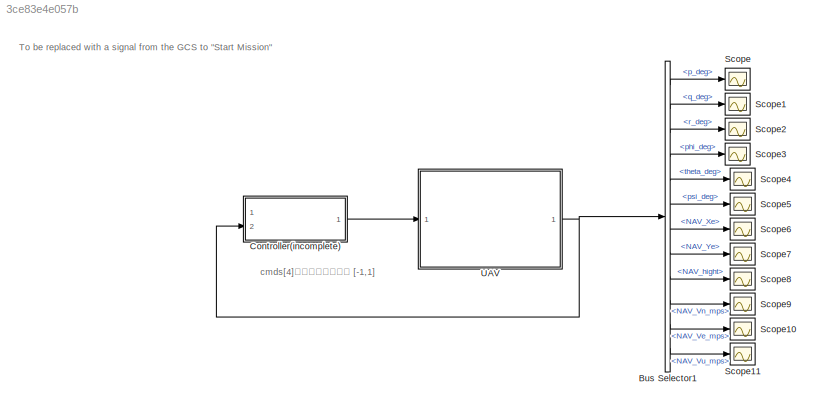
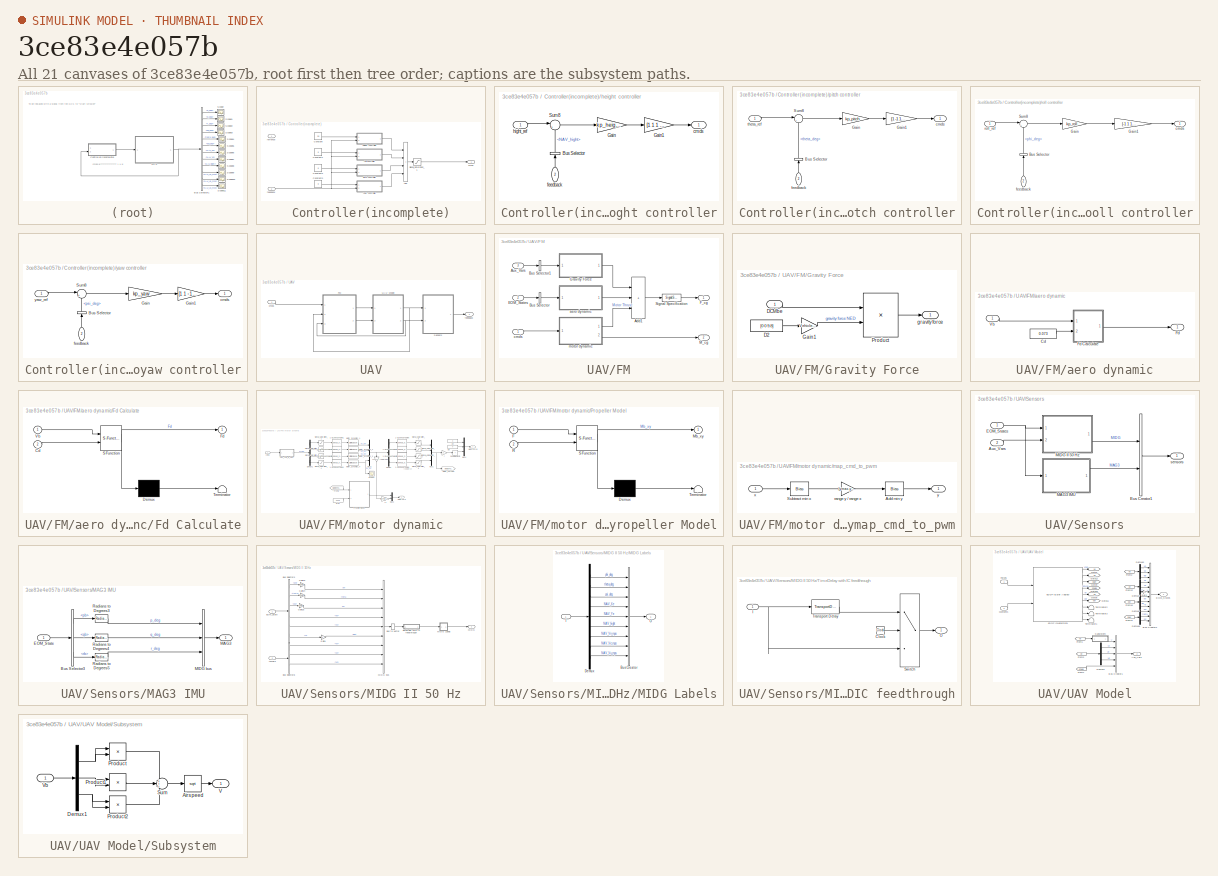
[diagram: thumbnail index - all 21 canvases of the model, root first then tree order]
MODEL slx_3ce83e4e057b
KIND model
CONFIG AbsTol = auto
CONFIG EnableMultiTasking = off
CONFIG FixedStep = auto
CONFIG MaxStep = auto
CONFIG MinStep = auto
CONFIG RelTol = 1e-3
CONFIG SampleTimeConstraint = Unconstrained
CONFIG SolverName = VariableStepAuto
CONFIG StartTime = 0.0
CONFIG StopTime = 5
BLOCK [BusSelector] Bus Selector1
  OutputSignals = MAG3.p_deg,MAG3.q_deg,MAG3.r_deg,MIDG.phi_deg,MIDG.theta_deg,MIDG.psi_deg,MIDG.NAV_Xe,MIDG.NAV_Ye,MIDG.NAV_hight,MIDG.NAV_Vn_mps,MIDG.NAV_Ve_mps,MIDG.NAV_Vu_mps
  Ports = [1, 12]
BLOCK [SubSystem] Controller(incomplete)
  Ports = [2, 1]
  RequestExecContextInheritance = off
BLOCK [Sum] Controller(incomplete)/Add
  IconShape = rectangular
  Inputs = ++++
  Ports = [4, 1]
BLOCK [Constant] Controller(incomplete)/Constant
  Value = 20
BLOCK [Constant] Controller(incomplete)/Constant1
  Value = 0
BLOCK [Constant] Controller(incomplete)/Constant2
  Value = 0
BLOCK [Constant] Controller(incomplete)/Constant3
  Value = 0
BLOCK [Saturate] Controller(incomplete)/Signal_Saturation_1
  LowerLimit = [-1 -1 -1 -1]
  UpperLimit = [1 1 1 1]
BLOCK [Outport] Controller(incomplete)/cmds
BLOCK [Inport] Controller(incomplete)/feedback
  Port = 2
BLOCK [SubSystem] Controller(incomplete)/height controller
  Ports = [2, 1]
  RequestExecContextInheritance = off
BLOCK [BusSelector] Controller(incomplete)/height controller/Bus Selector
  NameLocation = right
  OutputSignals = MIDG.NAV_hight
  Ports = [1, 1]
BLOCK [Gain] Controller(incomplete)/height controller/Gain
  Gain = kp_height
BLOCK [Gain] Controller(incomplete)/height controller/Gain1
  Gain = [1 1 1 1]
BLOCK [Sum] Controller(incomplete)/height controller/Sum8
  Inputs = |+-
  Ports = [2, 1]
BLOCK [Outport] Controller(incomplete)/height controller/cmds
  VectorParamsAs1DForOutWhenUnconnected = off
BLOCK [Inport] Controller(incomplete)/height controller/feedback
  NameLocation = right
  Port = 2
BLOCK [Inport] Controller(incomplete)/height controller/hight_ref
BLOCK [SubSystem] Controller(incomplete)/pitch controller
  Ports = [2, 1]
  RequestExecContextInheritance = off
BLOCK [BusSelector] Controller(incomplete)/pitch controller/Bus Selector
  NameLocation = right
  OutputSignals = MIDG.theta_deg
  Ports = [1, 1]
BLOCK [Gain] Controller(incomplete)/pitch controller/Gain
  Gain = kp_pitch
BLOCK [Gain] Controller(incomplete)/pitch controller/Gain1
  Gain = [1 -1 1 -1]
BLOCK [Sum] Controller(incomplete)/pitch controller/Sum8
  Inputs = |+-
  Ports = [2, 1]
BLOCK [Outport] Controller(incomplete)/pitch controller/cmds
  VectorParamsAs1DForOutWhenUnconnected = off
BLOCK [Inport] Controller(incomplete)/pitch controller/feedback
  NameLocation = right
  Port = 2
BLOCK [Inport] Controller(incomplete)/pitch controller/theta_ref
BLOCK [Inport] Controller(incomplete)/refrence
BLOCK [SubSystem] Controller(incomplete)/roll controller
  Ports = [2, 1]
  RequestExecContextInheritance = off
BLOCK [BusSelector] Controller(incomplete)/roll controller/Bus Selector
  NameLocation = right
  OutputSignals = MIDG.phi_deg
  Ports = [1, 1]
BLOCK [Gain] Controller(incomplete)/roll controller/Gain
  Gain = kp_roll
BLOCK [Gain] Controller(incomplete)/roll controller/Gain1
  Gain = [-1 1 1 -1]
BLOCK [Sum] Controller(incomplete)/roll controller/Sum8
  Inputs = |+-
  Ports = [2, 1]
BLOCK [Outport] Controller(incomplete)/roll controller/cmds
  VectorParamsAs1DForOutWhenUnconnected = off
BLOCK [Inport] Controller(incomplete)/roll controller/feedback
  NameLocation = right
  Port = 2
BLOCK [Inport] Controller(incomplete)/roll controller/roll_ref
BLOCK [SubSystem] Controller(incomplete)/yaw controller
  Ports = [2, 1]
  RequestExecContextInheritance = off
BLOCK [BusSelector] Controller(incomplete)/yaw controller/Bus Selector
  NameLocation = right
  OutputSignals = MIDG.psi_deg
  Ports = [1, 1]
BLOCK [Gain] Controller(incomplete)/yaw controller/Gain
  Gain = kp_yaw
BLOCK [Gain] Controller(incomplete)/yaw controller/Gain1
  Gain = [1 1 -1 -1]
BLOCK [Sum] Controller(incomplete)/yaw controller/Sum8
  Inputs = |+-
  Ports = [2, 1]
BLOCK [Outport] Controller(incomplete)/yaw controller/cmds
  VectorParamsAs1DForOutWhenUnconnected = off
BLOCK [Inport] Controller(incomplete)/yaw controller/feedback
  NameLocation = right
  Port = 2
BLOCK [Inport] Controller(incomplete)/yaw controller/yaw_ref
BLOCK [Scope] Scope
  Floating = off
  NumInputPorts = 1
  Ports = [1]
  ScopeSpecificationString = Simulink.scopes.TimeScopeBlockCfg('CurrentConfiguration', extmgr.ConfigurationSet(extmgr.Configuration('Core','General UI',true),extmgr.Configuration('Core','Source UI',true),extmgr.Configuration('Sources','WiredSimulink',true),extmgr.Configuration('Visuals','Time Domain',true),extmgr.Configuration('Tools','Plot Navigation',true),extmgr.Configuration('Tools','Measurements',true)),'Version','2020b'...<+1ch>
BLOCK [Scope] Scope1
  Floating = off
  NumInputPorts = 1
  Ports = [1]
  ScopeSpecificationString = Simulink.scopes.TimeScopeBlockCfg('CurrentConfiguration', extmgr.ConfigurationSet(extmgr.Configuration('Core','General UI',true),extmgr.Configuration('Core','Source UI',true),extmgr.Configuration('Sources','WiredSimulink',true,'DataLoggingVariableName','ScopeData1'),extmgr.Configuration('Visuals','Time Domain',true),extmgr.Configuration('Tools','Plot Navigation',true),extmgr.Configuration('Tools',...<+40ch>
BLOCK [Scope] Scope10
  Floating = off
  NumInputPorts = 1
  Ports = [1]
  ScopeSpecificationString = Simulink.scopes.TimeScopeBlockCfg('CurrentConfiguration', extmgr.ConfigurationSet(extmgr.Configuration('Core','General UI',true),extmgr.Configuration('Core','Source UI',true),extmgr.Configuration('Sources','WiredSimulink',true,'DataLoggingVariableName','ScopeData11'),extmgr.Configuration('Visuals','Time Domain',true),extmgr.Configuration('Tools','Plot Navigation',true),extmgr.Configuration('Tools'...<+41ch>
BLOCK [Scope] Scope11
  Floating = off
  NumInputPorts = 1
  Ports = [1]
  ScopeSpecificationString = Simulink.scopes.TimeScopeBlockCfg('CurrentConfiguration', extmgr.ConfigurationSet(extmgr.Configuration('Core','General UI',true),extmgr.Configuration('Core','Source UI',true),extmgr.Configuration('Sources','WiredSimulink',true,'DataLoggingVariableName','ScopeData12'),extmgr.Configuration('Visuals','Time Domain',true),extmgr.Configuration('Tools','Plot Navigation',true),extmgr.Configuration('Tools'...<+41ch>
BLOCK [Scope] Scope2
  Floating = off
  NumInputPorts = 1
  Ports = [1]
  ScopeSpecificationString = Simulink.scopes.TimeScopeBlockCfg('CurrentConfiguration', extmgr.ConfigurationSet(extmgr.Configuration('Core','General UI',true),extmgr.Configuration('Core','Source UI',true),extmgr.Configuration('Sources','WiredSimulink',true,'DataLoggingVariableName','ScopeData3'),extmgr.Configuration('Visuals','Time Domain',true),extmgr.Configuration('Tools','Plot Navigation',true),extmgr.Configuration('Tools',...<+40ch>
BLOCK [Scope] Scope3
  Floating = off
  NumInputPorts = 1
  Ports = [1]
  ScopeSpecificationString = Simulink.scopes.TimeScopeBlockCfg('CurrentConfiguration', extmgr.ConfigurationSet(extmgr.Configuration('Core','General UI',true),extmgr.Configuration('Core','Source UI',true),extmgr.Configuration('Sources','WiredSimulink',true,'DataLoggingVariableName','ScopeData4'),extmgr.Configuration('Visuals','Time Domain',true),extmgr.Configuration('Tools','Plot Navigation',true),extmgr.Configuration('Tools',...<+40ch>
BLOCK [Scope] Scope4
  Floating = off
  NumInputPorts = 1
  Ports = [1]
  ScopeSpecificationString = Simulink.scopes.TimeScopeBlockCfg('CurrentConfiguration', extmgr.ConfigurationSet(extmgr.Configuration('Core','General UI',true),extmgr.Configuration('Core','Source UI',true),extmgr.Configuration('Sources','WiredSimulink',true,'DataLoggingVariableName','ScopeData5'),extmgr.Configuration('Visuals','Time Domain',true),extmgr.Configuration('Tools','Plot Navigation',true),extmgr.Configuration('Tools',...<+40ch>
BLOCK [Scope] Scope5
  Floating = off
  NumInputPorts = 1
  Ports = [1]
  ScopeSpecificationString = Simulink.scopes.TimeScopeBlockCfg('CurrentConfiguration', extmgr.ConfigurationSet(extmgr.Configuration('Core','General UI',true),extmgr.Configuration('Core','Source UI',true),extmgr.Configuration('Sources','WiredSimulink',true,'DataLoggingVariableName','ScopeData6'),extmgr.Configuration('Visuals','Time Domain',true),extmgr.Configuration('Tools','Plot Navigation',true),extmgr.Configuration('Tools',...<+40ch>
BLOCK [Scope] Scope6
  Floating = off
  NumInputPorts = 1
  Ports = [1]
  ScopeSpecificationString = Simulink.scopes.TimeScopeBlockCfg('CurrentConfiguration', extmgr.ConfigurationSet(extmgr.Configuration('Core','General UI',true),extmgr.Configuration('Core','Source UI',true),extmgr.Configuration('Sources','WiredSimulink',true,'DataLoggingVariableName','ScopeData7'),extmgr.Configuration('Visuals','Time Domain',true),extmgr.Configuration('Tools','Plot Navigation',true),extmgr.Configuration('Tools',...<+40ch>
BLOCK [Scope] Scope7
  Floating = off
  NumInputPorts = 1
  Ports = [1]
  ScopeSpecificationString = Simulink.scopes.TimeScopeBlockCfg('CurrentConfiguration', extmgr.ConfigurationSet(extmgr.Configuration('Core','General UI',true),extmgr.Configuration('Core','Source UI',true),extmgr.Configuration('Sources','WiredSimulink',true,'DataLoggingVariableName','ScopeData8'),extmgr.Configuration('Visuals','Time Domain',true),extmgr.Configuration('Tools','Plot Navigation',true),extmgr.Configuration('Tools',...<+40ch>
BLOCK [Scope] Scope8
  Floating = off
  NumInputPorts = 1
  Ports = [1]
  ScopeSpecificationString = Simulink.scopes.TimeScopeBlockCfg('CurrentConfiguration', extmgr.ConfigurationSet(extmgr.Configuration('Core','General UI',true),extmgr.Configuration('Core','Source UI',true),extmgr.Configuration('Sources','WiredSimulink',true,'DataLoggingVariableName','ScopeData9'),extmgr.Configuration('Visuals','Time Domain',true),extmgr.Configuration('Tools','Plot Navigation',true),extmgr.Configuration('Tools',...<+40ch>
BLOCK [Scope] Scope9
  Floating = off
  NumInputPorts = 1
  Ports = [1]
  ScopeSpecificationString = Simulink.scopes.TimeScopeBlockCfg('CurrentConfiguration', extmgr.ConfigurationSet(extmgr.Configuration('Core','General UI',true),extmgr.Configuration('Core','Source UI',true),extmgr.Configuration('Sources','WiredSimulink',true,'DataLoggingVariableName','ScopeData10'),extmgr.Configuration('Visuals','Time Domain',true),extmgr.Configuration('Tools','Plot Navigation',true),extmgr.Configuration('Tools'...<+41ch>
BLOCK [SubSystem] UAV
  Ports = [1, 1]
  RequestExecContextInheritance = off
BLOCK [SubSystem] UAV/FM
  Ports = [3, 2]
  RequestExecContextInheritance = off
BLOCK [Sum] UAV/FM/Add1
  IconShape = rectangular
  Inputs = +++
  Ports = [3, 1]
BLOCK [Inport] UAV/FM/Aux_Vars
  Port = 3
BLOCK [BusSelector] UAV/FM/Bus Selector
  OutputAsBus = on
  OutputSignals = ub,wb,vb
  Ports = [1, 1]
BLOCK [BusSelector] UAV/FM/Bus Selector1
  OutputAsBus = on
  OutputSignals = DCMbe
  Ports = [1, 1]
BLOCK [Inport] UAV/FM/EOM_States
  Port = 2
  Unit = m/s
BLOCK [Outport] UAV/FM/F_cg
  Unit = N
  VectorParamsAs1DForOutWhenUnconnected = off
BLOCK [SubSystem] UAV/FM/Gravity Force
  Ports = [1, 1]
  RequestExecContextInheritance = off
BLOCK [Constant] UAV/FM/Gravity Force/D2
  Value = [0 0 9.8]
BLOCK [Inport] UAV/FM/Gravity Force/DCMbe
BLOCK [Gain] UAV/FM/Gravity Force/Gain1
  Gain = Vehicle.Airframe.mass
BLOCK [Product] UAV/FM/Gravity Force/Product
  Multiplication = Matrix(*)
  Ports = [2, 1]
BLOCK [Outport] UAV/FM/Gravity Force/gravity force
  Unit = N
  VectorParamsAs1DForOutWhenUnconnected = off
BLOCK [Outport] UAV/FM/M_cg
  Port = 2
  Unit = N*m
  VectorParamsAs1DForOutWhenUnconnected = off
BLOCK [SignalSpecification] UAV/FM/Signal Specification
  Dimensions = 3
BLOCK [SubSystem] UAV/FM/aero dynamic
  Ports = [1, 1]
  RequestExecContextInheritance = off
BLOCK [Constant] UAV/FM/aero dynamic/Cd
  Value = 0.073
BLOCK [Outport] UAV/FM/aero dynamic/Fd
BLOCK [SubSystem] UAV/FM/aero dynamic/Fd Calculate
  ErrorFcn = Stateflow.Translate.translate
  PermitHierarchicalResolution = ExplicitOnly
  Ports = [2, 1]
  RequestExecContextInheritance = off
  SFBlockType = MATLAB Function
  TreatAsAtomicUnit = on
BLOCK [Demux] UAV/FM/aero dynamic/Fd Calculate/ Demux 
  Outputs = 1
  Ports = [1, 1]
BLOCK [S-Function] UAV/FM/aero dynamic/Fd Calculate/ SFunction 
  EnableBusSupport = off
  FunctionName = sf_sfun
  PortCounts = [2 2]
  Ports = [2, 2]
  SFcnIsStateOwnerBlock = off
  SFunctionDeploymentMode = off
  Tag = Stateflow S-Function 1
BLOCK [Terminator] UAV/FM/aero dynamic/Fd Calculate/ Terminator 
BLOCK [Inport] UAV/FM/aero dynamic/Fd Calculate/Cd
  Port = 2
BLOCK [Outport] UAV/FM/aero dynamic/Fd Calculate/Fd
BLOCK [Inport] UAV/FM/aero dynamic/Fd Calculate/Vb
BLOCK [Inport] UAV/FM/aero dynamic/Vb
BLOCK [Inport] UAV/FM/cmds
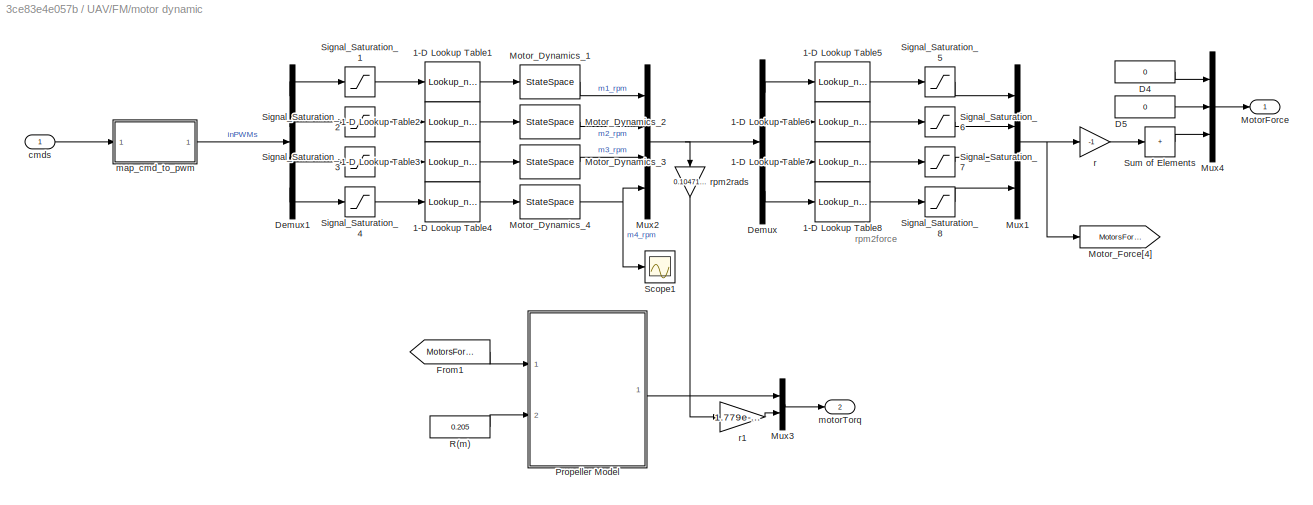
BLOCK [SubSystem] UAV/FM/motor dynamic
  Ports = [1, 2]
  RequestExecContextInheritance = off
BLOCK [Lookup_n-D] UAV/FM/motor dynamic/1-D Lookup Table1
  BeginIndexSearchUsingPreviousIndexResult = on
  BreakpointsForDimension1 = [1301\n1347\n1402\n1459\n1522\n1591\n1661\n1702\n1778\n1932]
  InputPortMap = u0
  InternalRulePriority = Speed
  NumberOfTableDimensions = 1
  Ports = [1, 1]
  RndMeth = Simplest
  Table = [2847\n3689\n4585\n5400\n6400\n7000\n7800\n8222\n9300\n10700]
BLOCK [Lookup_n-D] UAV/FM/motor dynamic/1-D Lookup Table2
  BeginIndexSearchUsingPreviousIndexResult = on
  BreakpointsForDimension1 = [1301\n1347\n1402\n1459\n1522\n1591\n1661\n1702\n1778\n1932]
  InputPortMap = u0
  InternalRulePriority = Speed
  NumberOfTableDimensions = 1
  Ports = [1, 1]
  RndMeth = Simplest
  Table = [2847\n3689\n4585\n5400\n6400\n7000\n7800\n8222\n9300\n10700]
BLOCK [Lookup_n-D] UAV/FM/motor dynamic/1-D Lookup Table3
  BeginIndexSearchUsingPreviousIndexResult = on
  BreakpointsForDimension1 = [1301\n1347\n1402\n1459\n1522\n1591\n1661\n1702\n1778\n1932]
  InputPortMap = u0
  InternalRulePriority = Speed
  NumberOfTableDimensions = 1
  Ports = [1, 1]
  RndMeth = Simplest
  Table = [2847\n3689\n4585\n5400\n6400\n7000\n7800\n8222\n9300\n10700]
BLOCK [Lookup_n-D] UAV/FM/motor dynamic/1-D Lookup Table4
  BeginIndexSearchUsingPreviousIndexResult = on
  BreakpointsForDimension1 = [1301\n1347\n1402\n1459\n1522\n1591\n1661\n1702\n1778\n1932]
  InputPortMap = u0
  InternalRulePriority = Speed
  NumberOfTableDimensions = 1
  Ports = [1, 1]
  RndMeth = Simplest
  Table = [2847\n3689\n4585\n5400\n6400\n7000\n7800\n8222\n9300\n10700]
BLOCK [Lookup_n-D] UAV/FM/motor dynamic/1-D Lookup Table5
  BeginIndexSearchUsingPreviousIndexResult = on
  BreakpointsForDimension1 = [2847\n3689\n4585\n5400\n6400\n7000\n7800\n8222\n9300\n10700]
  InputPortMap = u0
  InternalRulePriority = Speed
  NumberOfTableDimensions = 1
  Ports = [1, 1]
  RndMeth = Simplest
  Table = [0.6664\n1.4308\n2.3422\n3.3418\n4.9098\n5.929\n7.399\n7.6244\n10.976\n13.72]
BLOCK [Lookup_n-D] UAV/FM/motor dynamic/1-D Lookup Table6
  BeginIndexSearchUsingPreviousIndexResult = on
  BreakpointsForDimension1 = [2847\n3689\n4585\n5400\n6400\n7000\n7800\n8222\n9300\n10700]
  InputPortMap = u0
  InternalRulePriority = Speed
  NumberOfTableDimensions = 1
  Ports = [1, 1]
  RndMeth = Simplest
  Table = [0.6664\n1.4308\n2.3422\n3.3418\n4.9098\n5.929\n7.399\n7.6244\n10.976\n13.72]
BLOCK [Lookup_n-D] UAV/FM/motor dynamic/1-D Lookup Table7
  BeginIndexSearchUsingPreviousIndexResult = on
  BreakpointsForDimension1 = [2847\n3689\n4585\n5400\n6400\n7000\n7800\n8222\n9300\n10700]
  InputPortMap = u0
  InternalRulePriority = Speed
  NumberOfTableDimensions = 1
  Ports = [1, 1]
  RndMeth = Simplest
  Table = [0.6664\n1.4308\n2.3422\n3.3418\n4.9098\n5.929\n7.399\n7.6244\n10.976\n13.72]
BLOCK [Lookup_n-D] UAV/FM/motor dynamic/1-D Lookup Table8
  BeginIndexSearchUsingPreviousIndexResult = on
  BreakpointsForDimension1 = [2847\n3689\n4585\n5400\n6400\n7000\n7800\n8222\n9300\n10700]
  InputPortMap = u0
  InternalRulePriority = Speed
  NumberOfTableDimensions = 1
  Ports = [1, 1]
  RndMeth = Simplest
  Table = [0.6664\n1.4308\n2.3422\n3.3418\n4.9098\n5.929\n7.399\n7.6244\n10.976\n13.72]
BLOCK [Constant] UAV/FM/motor dynamic/D4
  Value = 0
BLOCK [Constant] UAV/FM/motor dynamic/D5
  Value = 0
BLOCK [Demux] UAV/FM/motor dynamic/Demux
  Ports = [1, 4]
BLOCK [Demux] UAV/FM/motor dynamic/Demux1
  Ports = [1, 4]
BLOCK [From] UAV/FM/motor dynamic/From1
  GotoTag = MotorsForce
BLOCK [Outport] UAV/FM/motor dynamic/MotorForce
BLOCK [StateSpace] UAV/FM/motor dynamic/Motor_Dynamics_1
  A = -1/ModelParam_motorT
  C = 1/ModelParam_motorT
  D = 0
  InitialCondition = ModelInit_RPM*ModelParam_motorT
  Ports = [1, 1]
BLOCK [StateSpace] UAV/FM/motor dynamic/Motor_Dynamics_2
  A = -1/ModelParam_motorT
  C = 1/ModelParam_motorT
  D = 0
  InitialCondition = ModelInit_RPM*ModelParam_motorT
  Ports = [1, 1]
BLOCK [StateSpace] UAV/FM/motor dynamic/Motor_Dynamics_3
  A = -1/ModelParam_motorT
  C = 1/ModelParam_motorT
  D = 0
  InitialCondition = ModelInit_RPM*ModelParam_motorT
  Ports = [1, 1]
BLOCK [StateSpace] UAV/FM/motor dynamic/Motor_Dynamics_4
  A = -1/ModelParam_motorT
  C = 1/ModelParam_motorT
  D = 0
  InitialCondition = ModelInit_RPM*ModelParam_motorT
  Ports = [1, 1]
BLOCK [Goto] UAV/FM/motor dynamic/Motor_Force[4]
  GotoTag = MotorsForce
BLOCK [Mux] UAV/FM/motor dynamic/Mux1
  DisplayOption = bar
  Ports = [4, 1]
BLOCK [Mux] UAV/FM/motor dynamic/Mux2
  DisplayOption = bar
  Ports = [4, 1]
BLOCK [Mux] UAV/FM/motor dynamic/Mux3
  DisplayOption = bar
  Inputs = [2 1]
  Ports = [2, 1]
BLOCK [Mux] UAV/FM/motor dynamic/Mux4
  DisplayOption = bar
  Inputs = 3
  Ports = [3, 1]
BLOCK [SubSystem] UAV/FM/motor dynamic/Propeller Model
  ErrorFcn = Stateflow.Translate.translate
  PermitHierarchicalResolution = ExplicitOnly
  Ports = [2, 1]
  RequestExecContextInheritance = off
  SFBlockType = MATLAB Function
  TreatAsAtomicUnit = on
BLOCK [Demux] UAV/FM/motor dynamic/Propeller Model/ Demux 
  Outputs = 1
  Ports = [1, 1]
BLOCK [S-Function] UAV/FM/motor dynamic/Propeller Model/ SFunction 
  EnableBusSupport = off
  FunctionName = sf_sfun
  PortCounts = [2 2]
  Ports = [2, 2]
  SFcnIsStateOwnerBlock = off
  SFunctionDeploymentMode = off
  Tag = Stateflow S-Function 7
BLOCK [Terminator] UAV/FM/motor dynamic/Propeller Model/ Terminator 
BLOCK [Inport] UAV/FM/motor dynamic/Propeller Model/F
BLOCK [Outport] UAV/FM/motor dynamic/Propeller Model/Mb_xy
BLOCK [Inport] UAV/FM/motor dynamic/Propeller Model/R
  Port = 2
BLOCK [Constant] UAV/FM/motor dynamic/R(m)
  Value = 0.205
BLOCK [Scope] UAV/FM/motor dynamic/Scope1
  Floating = off
  NumInputPorts = 1
  Ports = [1]
  ScopeSpecificationString = Simulink.scopes.TimeScopeBlockCfg('CurrentConfiguration', extmgr.ConfigurationSet(extmgr.Configuration('Core','General UI',true),extmgr.Configuration('Core','Source UI',true),extmgr.Configuration('Sources','WiredSimulink',true,'DataLoggingVariableName','ScopeData2'),extmgr.Configuration('Visuals','Time Domain',true,'SerializedDisplays',{struct('MinYLimReal','-24792.96084','MaxYLimReal','17272.1293...<+1789ch>
BLOCK [Saturate] UAV/FM/motor dynamic/Signal_Saturation_1
  LowerLimit = 0
  UpperLimit = 2400
BLOCK [Saturate] UAV/FM/motor dynamic/Signal_Saturation_2
  LowerLimit = 0
  UpperLimit = 2400
BLOCK [Saturate] UAV/FM/motor dynamic/Signal_Saturation_3
  LowerLimit = 0
  UpperLimit = 2400
BLOCK [Saturate] UAV/FM/motor dynamic/Signal_Saturation_4
  LowerLimit = 0
  UpperLimit = 2400
BLOCK [Saturate] UAV/FM/motor dynamic/Signal_Saturation_5
  LowerLimit = 0
  UpperLimit = 1.4*9.8
BLOCK [Saturate] UAV/FM/motor dynamic/Signal_Saturation_6
  LowerLimit = 0
  UpperLimit = 1.4*9.8
BLOCK [Saturate] UAV/FM/motor dynamic/Signal_Saturation_7
  LowerLimit = 0
  UpperLimit = 1.4*9.8
BLOCK [Saturate] UAV/FM/motor dynamic/Signal_Saturation_8
  LowerLimit = 0
  UpperLimit = 1.4*9.8
BLOCK [Sum] UAV/FM/motor dynamic/Sum of Elements
  IconShape = rectangular
  Inputs = +
  Ports = [1, 1]
BLOCK [Inport] UAV/FM/motor dynamic/cmds
BLOCK [SubSystem] UAV/FM/motor dynamic/map_cmd_to_pwm
  AncestorBlock = neural/Processing Functions/mapminmax
  Ports = [1, 1]
  RequestExecContextInheritance = off
BLOCK [Bias] UAV/FM/motor dynamic/map_cmd_to_pwm/Add min y
  Bias = ymin
  SaturateOnIntegerOverflow = off
BLOCK [Bias] UAV/FM/motor dynamic/map_cmd_to_pwm/Subtract min x
  Bias = -xmin
  SaturateOnIntegerOverflow = off
BLOCK [Gain] UAV/FM/motor dynamic/map_cmd_to_pwm/range y // range x
  Gain = (ymax-ymin)./(xmax-xmin)
BLOCK [Inport] UAV/FM/motor dynamic/map_cmd_to_pwm/x
BLOCK [Outport] UAV/FM/motor dynamic/map_cmd_to_pwm/y
  VectorParamsAs1DForOutWhenUnconnected = off
BLOCK [Outport] UAV/FM/motor dynamic/motorTorq
  Port = 2
BLOCK [Gain] UAV/FM/motor dynamic/r
  Gain = -1
BLOCK [Gain] UAV/FM/motor dynamic/r1
  Gain = 1.779e-07*[1 1 -1 -1]
  Multiplication = Matrix(K*u)
BLOCK [Gain] UAV/FM/motor dynamic/rpm2rads
  Gain = 0.104719755119660
  NameLocation = left
BLOCK [SubSystem] UAV/Sensors
  Ports = [2, 1]
  RequestExecContextInheritance = off
BLOCK [Inport] UAV/Sensors/Aux_Vars
  Port = 2
BLOCK [BusCreator] UAV/Sensors/Bus Creator1
  DisplayOption = bar
  InheritFromInputs = on
  Inputs = 2
  Ports = [2, 1]
BLOCK [Inport] UAV/Sensors/EOM_States
BLOCK [SubSystem] UAV/Sensors/MAG3 IMU
  Ports = [1, 1]
  RequestExecContextInheritance = off
BLOCK [BusSelector] UAV/Sensors/MAG3 IMU/Bus Selector3
  OutputSignals = pb,qb,rb
  Ports = [1, 3]
BLOCK [Inport] UAV/Sensors/MAG3 IMU/EOM_State
BLOCK [Outport] UAV/Sensors/MAG3 IMU/MAG3
BLOCK [BusCreator] UAV/Sensors/MAG3 IMU/MIDG bus
  DisplayOption = bar
  InheritFromInputs = on
  Inputs = 3
  Ports = [3, 1]
BLOCK [Reference] UAV/Sensors/MAG3 IMU/Radians to Degrees3  REF=simulink_extras/Transformations/Radians
to Degrees
  Ports = [1, 1]
  SourceBlock = simulink_extras/Transformations/Radians\nto Degrees
  SourceProductBaseCode = SL
  SourceType = RadiansToDegrees
BLOCK [Reference] UAV/Sensors/MAG3 IMU/Radians to Degrees4  REF=simulink_extras/Transformations/Radians
to Degrees
  Ports = [1, 1]
  SourceBlock = simulink_extras/Transformations/Radians\nto Degrees
  SourceProductBaseCode = SL
  SourceType = RadiansToDegrees
BLOCK [Reference] UAV/Sensors/MAG3 IMU/Radians to Degrees5  REF=simulink_extras/Transformations/Radians
to Degrees
  Ports = [1, 1]
  SourceBlock = simulink_extras/Transformations/Radians\nto Degrees
  SourceProductBaseCode = SL
  SourceType = RadiansToDegrees
BLOCK [SubSystem] UAV/Sensors/MIDG II 50 Hz
  Ports = [2, 1]
  RequestExecContextInheritance = off
  SystemSampleTime = round(1/Timestep/50)*Timestep
BLOCK [Inport] UAV/Sensors/MIDG II 50 Hz/AuxVars
  Port = 2
BLOCK [BusSelector] UAV/Sensors/MIDG II 50 Hz/Bus Selector3
  OutputSignals = phi,theta,psi,Xe,Ye,H
  Ports = [1, 6]
BLOCK [BusSelector] UAV/Sensors/MIDG II 50 Hz/Bus Selector8
  OutputSignals = Vn,Ve,Vd
  Ports = [1, 3]
BLOCK [BusToVector] UAV/Sensors/MIDG II 50 Hz/Bus to Vector
BLOCK [Inport] UAV/Sensors/MIDG II 50 Hz/EOM_State
BLOCK [Gain] UAV/Sensors/MIDG II 50 Hz/Gain1
BLOCK [Gain] UAV/Sensors/MIDG II 50 Hz/Gain13
  Gain = 180/pi
BLOCK [Gain] UAV/Sensors/MIDG II 50 Hz/Gain14
  Gain = 180/pi
BLOCK [Gain] UAV/Sensors/MIDG II 50 Hz/Gain15
  Gain = 180/pi
BLOCK [Outport] UAV/Sensors/MIDG II 50 Hz/MIDG
BLOCK [SubSystem] UAV/Sensors/MIDG II 50 Hz/MIDG Labels
  Ports = [1, 1]
  RequestExecContextInheritance = off
BLOCK [BusCreator] UAV/Sensors/MIDG II 50 Hz/MIDG Labels/Bus Creator
  DisplayOption = bar
  InheritFromInputs = on
  Inputs = 9
  Ports = [9, 1]
BLOCK [Demux] UAV/Sensors/MIDG II 50 Hz/MIDG Labels/Demux
  Outputs = 9
  Ports = [1, 9]
BLOCK [Inport] UAV/Sensors/MIDG II 50 Hz/MIDG Labels/I
BLOCK [Outport] UAV/Sensors/MIDG II 50 Hz/MIDG Labels/O
BLOCK [BusCreator] UAV/Sensors/MIDG II 50 Hz/MIDG bus
  DisplayOption = bar
  InheritFromInputs = on
  Inputs = 9
  Ports = [9, 1]
BLOCK [SubSystem] UAV/Sensors/MIDG II 50 Hz/TimeDelay with IC feedthrough
  Ports = [1, 1]
  RequestExecContextInheritance = off
BLOCK [Clock] UAV/Sensors/MIDG II 50 Hz/TimeDelay with IC feedthrough/Clock
BLOCK [Inport] UAV/Sensors/MIDG II 50 Hz/TimeDelay with IC feedthrough/I
BLOCK [Outport] UAV/Sensors/MIDG II 50 Hz/TimeDelay with IC feedthrough/O
BLOCK [Switch] UAV/Sensors/MIDG II 50 Hz/TimeDelay with IC feedthrough/Switch
  Criteria = u2 > Threshold
  InputSameDT = off
  SaturateOnIntegerOverflow = off
  Threshold = TimeDelay
BLOCK [TransportDelay] UAV/Sensors/MIDG II 50 Hz/TimeDelay with IC feedthrough/Transport Delay
  AttributesFormatString = %<DelayTime>
  DelayTime = TimeDelay
  Ports = [1, 1]
BLOCK [Outport] UAV/Sensors/sensors
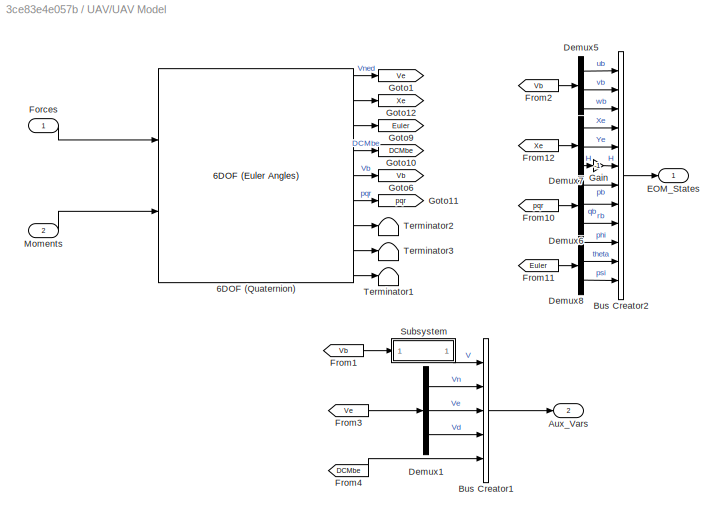
BLOCK [SubSystem] UAV/UAV Model
  Ports = [2, 2]
  RequestExecContextInheritance = off
BLOCK [Reference] UAV/UAV Model/6DOF (Quaternion)  REF=shared6dof/6DOF (Euler Angles)
  Ports = [2, 9]
  SourceBlock = shared6dof/6DOF (Euler Angles)
  SourceProductBaseCode = AE,PW,DR,MT,VE
  SourceType = 6DOF EoM (Body Axis)
BLOCK [Outport] UAV/UAV Model/Aux_Vars
  Port = 2
BLOCK [BusCreator] UAV/UAV Model/Bus Creator1
  DisplayOption = bar
  InheritFromInputs = on
  Inputs = 5
  Ports = [5, 1]
BLOCK [BusCreator] UAV/UAV Model/Bus Creator2
  DisplayOption = bar
  InheritFromInputs = on
  Inputs = 12
  Ports = [12, 1]
BLOCK [Demux] UAV/UAV Model/Demux1
  Outputs = 3
  Ports = [1, 3]
BLOCK [Demux] UAV/UAV Model/Demux5
  Outputs = 3
  Ports = [1, 3]
BLOCK [Demux] UAV/UAV Model/Demux6
  Outputs = 3
  Ports = [1, 3]
BLOCK [Demux] UAV/UAV Model/Demux7
  Outputs = 3
  Ports = [1, 3]
BLOCK [Demux] UAV/UAV Model/Demux8
  Outputs = 3
  Ports = [1, 3]
BLOCK [Outport] UAV/UAV Model/EOM_States
BLOCK [Inport] UAV/UAV Model/Forces
BLOCK [From] UAV/UAV Model/From1
  CloseFcn = tagdialog Close
  GotoTag = Vb
BLOCK [From] UAV/UAV Model/From10
  CloseFcn = tagdialog Close
  GotoTag = pqr
BLOCK [From] UAV/UAV Model/From11
  CloseFcn = tagdialog Close
  GotoTag = Euler
BLOCK [From] UAV/UAV Model/From12
  CloseFcn = tagdialog Close
  GotoTag = Xe
BLOCK [From] UAV/UAV Model/From2
  CloseFcn = tagdialog Close
  GotoTag = Vb
BLOCK [From] UAV/UAV Model/From3
  CloseFcn = tagdialog Close
  GotoTag = Ve
BLOCK [From] UAV/UAV Model/From4
  CloseFcn = tagdialog Close
  GotoTag = DCMbe
BLOCK [Gain] UAV/UAV Model/Gain
  Gain = -1
BLOCK [Goto] UAV/UAV Model/Goto1
  GotoTag = Ve
BLOCK [Goto] UAV/UAV Model/Goto10
  GotoTag = DCMbe
BLOCK [Goto] UAV/UAV Model/Goto11
  GotoTag = pqr
BLOCK [Goto] UAV/UAV Model/Goto12
  GotoTag = Xe
BLOCK [Goto] UAV/UAV Model/Goto6
  GotoTag = Vb
BLOCK [Goto] UAV/UAV Model/Goto9
  GotoTag = Euler
BLOCK [Inport] UAV/UAV Model/Moments
  Port = 2
BLOCK [SubSystem] UAV/UAV Model/Subsystem
  Ports = [1, 1]
  RequestExecContextInheritance = off
BLOCK [Sqrt] UAV/UAV Model/Subsystem/Airspeed
  AlgorithmType = Newton-Raphson
BLOCK [Demux] UAV/UAV Model/Subsystem/Demux1
  Outputs = 3
  Ports = [1, 3]
BLOCK [Product] UAV/UAV Model/Subsystem/Product
  Ports = [2, 1]
  RndMeth = Zero
BLOCK [Product] UAV/UAV Model/Subsystem/Product1
  Ports = [2, 1]
  RndMeth = Zero
BLOCK [Product] UAV/UAV Model/Subsystem/Product2
  Ports = [2, 1]
  RndMeth = Zero
BLOCK [Sum] UAV/UAV Model/Subsystem/Sum
  Inputs = +++
  Ports = [3, 1]
BLOCK [Outport] UAV/UAV Model/Subsystem/V
BLOCK [Inport] UAV/UAV Model/Subsystem/Vb
BLOCK [Terminator] UAV/UAV Model/Terminator1
BLOCK [Terminator] UAV/UAV Model/Terminator2
BLOCK [Terminator] UAV/UAV Model/Terminator3
BLOCK [Inport] UAV/cmds
BLOCK [Outport] UAV/feedback
ANNOTATION (root): To be replaced with a signal from the GCS to "Start Mission"
ANNOTATION (root): cmds[4]为归一化电机指令 [-1,1]
ANNOTATION UAV/FM/motor dynamic: rpm2force
LINE Bus Selector1:1 -> Scope:1
LINE Bus Selector1:10 -> Scope9:1
LINE Bus Selector1:11 -> Scope10:1
LINE Bus Selector1:12 -> Scope11:1
LINE Bus Selector1:2 -> Scope1:1
LINE Bus Selector1:3 -> Scope2:1
LINE Bus Selector1:4 -> Scope3:1
LINE Bus Selector1:5 -> Scope4:1
LINE Bus Selector1:6 -> Scope5:1
LINE Bus Selector1:7 -> Scope6:1
LINE Bus Selector1:8 -> Scope7:1
LINE Bus Selector1:9 -> Scope8:1
LINE Controller(incomplete)/Add:1 -> Controller(incomplete)/Signal_Saturation_1:1
LINE Controller(incomplete)/Constant1:1 -> Controller(incomplete)/roll controller:1
LINE Controller(incomplete)/Constant2:1 -> Controller(incomplete)/pitch controller:1
LINE Controller(incomplete)/Constant3:1 -> Controller(incomplete)/yaw controller:1
LINE Controller(incomplete)/Constant:1 -> Controller(incomplete)/height controller:1
LINE Controller(incomplete)/Signal_Saturation_1:1 -> Controller(incomplete)/cmds:1
NET Controller(incomplete)/feedback:1 -> Controller(incomplete)/height controller:2, Controller(incomplete)/pitch controller:2, Controller(incomplete)/roll controller:2, Controller(incomplete)/yaw controller:2
LINE Controller(incomplete)/height controller/Bus Selector:1 -> Controller(incomplete)/height controller/Sum8:2
LINE Controller(incomplete)/height controller/Gain1:1 -> Controller(incomplete)/height controller/cmds:1
LINE Controller(incomplete)/height controller/Gain:1 -> Controller(incomplete)/height controller/Gain1:1
LINE Controller(incomplete)/height controller/Sum8:1 -> Controller(incomplete)/height controller/Gain:1
LINE Controller(incomplete)/height controller/feedback:1 -> Controller(incomplete)/height controller/Bus Selector:1
LINE Controller(incomplete)/height controller/hight_ref:1 -> Controller(incomplete)/height controller/Sum8:1
LINE Controller(incomplete)/height controller:1 -> Controller(incomplete)/Add:1
LINE Controller(incomplete)/pitch controller/Bus Selector:1 -> Controller(incomplete)/pitch controller/Sum8:2
LINE Controller(incomplete)/pitch controller/Gain1:1 -> Controller(incomplete)/pitch controller/cmds:1
LINE Controller(incomplete)/pitch controller/Gain:1 -> Controller(incomplete)/pitch controller/Gain1:1
LINE Controller(incomplete)/pitch controller/Sum8:1 -> Controller(incomplete)/pitch controller/Gain:1
LINE Controller(incomplete)/pitch controller/feedback:1 -> Controller(incomplete)/pitch controller/Bus Selector:1
LINE Controller(incomplete)/pitch controller/theta_ref:1 -> Controller(incomplete)/pitch controller/Sum8:1
LINE Controller(incomplete)/pitch controller:1 -> Controller(incomplete)/Add:3
LINE Controller(incomplete)/roll controller/Bus Selector:1 -> Controller(incomplete)/roll controller/Sum8:2
LINE Controller(incomplete)/roll controller/Gain1:1 -> Controller(incomplete)/roll controller/cmds:1
LINE Controller(incomplete)/roll controller/Gain:1 -> Controller(incomplete)/roll controller/Gain1:1
LINE Controller(incomplete)/roll controller/Sum8:1 -> Controller(incomplete)/roll controller/Gain:1
LINE Controller(incomplete)/roll controller/feedback:1 -> Controller(incomplete)/roll controller/Bus Selector:1
LINE Controller(incomplete)/roll controller/roll_ref:1 -> Controller(incomplete)/roll controller/Sum8:1
LINE Controller(incomplete)/roll controller:1 -> Controller(incomplete)/Add:2
LINE Controller(incomplete)/yaw controller/Bus Selector:1 -> Controller(incomplete)/yaw controller/Sum8:2
LINE Controller(incomplete)/yaw controller/Gain1:1 -> Controller(incomplete)/yaw controller/cmds:1
LINE Controller(incomplete)/yaw controller/Gain:1 -> Controller(incomplete)/yaw controller/Gain1:1
LINE Controller(incomplete)/yaw controller/Sum8:1 -> Controller(incomplete)/yaw controller/Gain:1
LINE Controller(incomplete)/yaw controller/feedback:1 -> Controller(incomplete)/yaw controller/Bus Selector:1
LINE Controller(incomplete)/yaw controller/yaw_ref:1 -> Controller(incomplete)/yaw controller/Sum8:1
LINE Controller(incomplete)/yaw controller:1 -> Controller(incomplete)/Add:4
LINE Controller(incomplete):1 -> UAV:1
LINE UAV/FM/Add1:1 -> UAV/FM/Signal Specification:1
LINE UAV/FM/Aux_Vars:1 -> UAV/FM/Bus Selector1:1
LINE UAV/FM/Bus Selector1:1 -> UAV/FM/Gravity Force:1
LINE UAV/FM/Bus Selector:1 -> UAV/FM/aero dynamic:1
LINE UAV/FM/EOM_States:1 -> UAV/FM/Bus Selector:1
LINE UAV/FM/Gravity Force/D2:1 -> UAV/FM/Gravity Force/Gain1:1
LINE UAV/FM/Gravity Force/DCMbe:1 -> UAV/FM/Gravity Force/Product:1
LINE UAV/FM/Gravity Force/Gain1:1 -> UAV/FM/Gravity Force/Product:2
LINE UAV/FM/Gravity Force/Product:1 -> UAV/FM/Gravity Force/gravity force:1
LINE UAV/FM/Gravity Force:1 -> UAV/FM/Add1:1
LINE UAV/FM/Signal Specification:1 -> UAV/FM/F_cg:1
LINE UAV/FM/aero dynamic/Cd:1 -> UAV/FM/aero dynamic/Fd Calculate:2
LINE UAV/FM/aero dynamic/Fd Calculate:1 -> UAV/FM/aero dynamic/Fd:1
LINE UAV/FM/aero dynamic/Vb:1 -> UAV/FM/aero dynamic/Fd Calculate:1
LINE UAV/FM/aero dynamic:1 -> UAV/FM/Add1:2
LINE UAV/FM/cmds:1 -> UAV/FM/motor dynamic:1
LINE UAV/FM/motor dynamic/1-D Lookup Table1:1 -> UAV/FM/motor dynamic/Motor_Dynamics_1:1
LINE UAV/FM/motor dynamic/1-D Lookup Table2:1 -> UAV/FM/motor dynamic/Motor_Dynamics_2:1
LINE UAV/FM/motor dynamic/1-D Lookup Table3:1 -> UAV/FM/motor dynamic/Motor_Dynamics_3:1
LINE UAV/FM/motor dynamic/1-D Lookup Table4:1 -> UAV/FM/motor dynamic/Motor_Dynamics_4:1
LINE UAV/FM/motor dynamic/1-D Lookup Table5:1 -> UAV/FM/motor dynamic/Signal_Saturation_5:1
LINE UAV/FM/motor dynamic/1-D Lookup Table6:1 -> UAV/FM/motor dynamic/Signal_Saturation_6:1
LINE UAV/FM/motor dynamic/1-D Lookup Table7:1 -> UAV/FM/motor dynamic/Signal_Saturation_7:1
LINE UAV/FM/motor dynamic/1-D Lookup Table8:1 -> UAV/FM/motor dynamic/Signal_Saturation_8:1
LINE UAV/FM/motor dynamic/D4:1 -> UAV/FM/motor dynamic/Mux4:1
LINE UAV/FM/motor dynamic/D5:1 -> UAV/FM/motor dynamic/Mux4:2
LINE UAV/FM/motor dynamic/Demux1:1 -> UAV/FM/motor dynamic/Signal_Saturation_1:1
LINE UAV/FM/motor dynamic/Demux1:2 -> UAV/FM/motor dynamic/Signal_Saturation_2:1
LINE UAV/FM/motor dynamic/Demux1:3 -> UAV/FM/motor dynamic/Signal_Saturation_3:1
LINE UAV/FM/motor dynamic/Demux1:4 -> UAV/FM/motor dynamic/Signal_Saturation_4:1
LINE UAV/FM/motor dynamic/Demux:1 -> UAV/FM/motor dynamic/1-D Lookup Table5:1
LINE UAV/FM/motor dynamic/Demux:2 -> UAV/FM/motor dynamic/1-D Lookup Table6:1
LINE UAV/FM/motor dynamic/Demux:3 -> UAV/FM/motor dynamic/1-D Lookup Table7:1
LINE UAV/FM/motor dynamic/Demux:4 -> UAV/FM/motor dynamic/1-D Lookup Table8:1
LINE UAV/FM/motor dynamic/From1:1 -> UAV/FM/motor dynamic/Propeller Model:1
LINE UAV/FM/motor dynamic/Motor_Dynamics_1:1 -> UAV/FM/motor dynamic/Mux2:1
LINE UAV/FM/motor dynamic/Motor_Dynamics_2:1 -> UAV/FM/motor dynamic/Mux2:2
LINE UAV/FM/motor dynamic/Motor_Dynamics_3:1 -> UAV/FM/motor dynamic/Mux2:3
NET UAV/FM/motor dynamic/Motor_Dynamics_4:1 -> UAV/FM/motor dynamic/Mux2:4, UAV/FM/motor dynamic/Scope1:1
NET UAV/FM/motor dynamic/Mux1:1 -> UAV/FM/motor dynamic/Motor_Force[4]:1, UAV/FM/motor dynamic/r:1
NET UAV/FM/motor dynamic/Mux2:1 -> UAV/FM/motor dynamic/Demux:1, UAV/FM/motor dynamic/rpm2rads:1
LINE UAV/FM/motor dynamic/Mux3:1 -> UAV/FM/motor dynamic/motorTorq:1
LINE UAV/FM/motor dynamic/Mux4:1 -> UAV/FM/motor dynamic/MotorForce:1
LINE UAV/FM/motor dynamic/Propeller Model:1 -> UAV/FM/motor dynamic/Mux3:1
LINE UAV/FM/motor dynamic/R(m):1 -> UAV/FM/motor dynamic/Propeller Model:2
LINE UAV/FM/motor dynamic/Signal_Saturation_1:1 -> UAV/FM/motor dynamic/1-D Lookup Table1:1
LINE UAV/FM/motor dynamic/Signal_Saturation_2:1 -> UAV/FM/motor dynamic/1-D Lookup Table2:1
LINE UAV/FM/motor dynamic/Signal_Saturation_3:1 -> UAV/FM/motor dynamic/1-D Lookup Table3:1
LINE UAV/FM/motor dynamic/Signal_Saturation_4:1 -> UAV/FM/motor dynamic/1-D Lookup Table4:1
LINE UAV/FM/motor dynamic/Signal_Saturation_5:1 -> UAV/FM/motor dynamic/Mux1:1
LINE UAV/FM/motor dynamic/Signal_Saturation_6:1 -> UAV/FM/motor dynamic/Mux1:2
LINE UAV/FM/motor dynamic/Signal_Saturation_7:1 -> UAV/FM/motor dynamic/Mux1:3
LINE UAV/FM/motor dynamic/Signal_Saturation_8:1 -> UAV/FM/motor dynamic/Mux1:4
LINE UAV/FM/motor dynamic/Sum of Elements:1 -> UAV/FM/motor dynamic/Mux4:3
LINE UAV/FM/motor dynamic/cmds:1 -> UAV/FM/motor dynamic/map_cmd_to_pwm:1
LINE UAV/FM/motor dynamic/map_cmd_to_pwm:1 -> UAV/FM/motor dynamic/Demux1:1
LINE UAV/FM/motor dynamic/r1:1 -> UAV/FM/motor dynamic/Mux3:2
LINE UAV/FM/motor dynamic/r:1 -> UAV/FM/motor dynamic/Sum of Elements:1
LINE UAV/FM/motor dynamic/rpm2rads:1 -> UAV/FM/motor dynamic/r1:1
LINE UAV/FM/motor dynamic:1 -> UAV/FM/Add1:3
LINE UAV/FM/motor dynamic:2 -> UAV/FM/M_cg:1
LINE UAV/FM:1 -> UAV/UAV Model:1
LINE UAV/FM:2 -> UAV/UAV Model:2
LINE UAV/Sensors/Aux_Vars:1 -> UAV/Sensors/MIDG II 50 Hz:2
LINE UAV/Sensors/Bus Creator1:1 -> UAV/Sensors/sensors:1
NET UAV/Sensors/EOM_States:1 -> UAV/Sensors/MAG3 IMU:1, UAV/Sensors/MIDG II 50 Hz:1
LINE UAV/Sensors/MAG3 IMU/Bus Selector3:1 -> UAV/Sensors/MAG3 IMU/Radians to Degrees3:1
LINE UAV/Sensors/MAG3 IMU/Bus Selector3:2 -> UAV/Sensors/MAG3 IMU/Radians to Degrees4:1
LINE UAV/Sensors/MAG3 IMU/Bus Selector3:3 -> UAV/Sensors/MAG3 IMU/Radians to Degrees5:1
LINE UAV/Sensors/MAG3 IMU/EOM_State:1 -> UAV/Sensors/MAG3 IMU/Bus Selector3:1
LINE UAV/Sensors/MAG3 IMU/MIDG bus:1 -> UAV/Sensors/MAG3 IMU/MAG3:1
LINE UAV/Sensors/MAG3 IMU/Radians to Degrees3:1 -> UAV/Sensors/MAG3 IMU/MIDG bus:1
LINE UAV/Sensors/MAG3 IMU/Radians to Degrees4:1 -> UAV/Sensors/MAG3 IMU/MIDG bus:2
LINE UAV/Sensors/MAG3 IMU/Radians to Degrees5:1 -> UAV/Sensors/MAG3 IMU/MIDG bus:3
LINE UAV/Sensors/MAG3 IMU:1 -> UAV/Sensors/Bus Creator1:2
LINE UAV/Sensors/MIDG II 50 Hz/AuxVars:1 -> UAV/Sensors/MIDG II 50 Hz/Bus Selector8:1
LINE UAV/Sensors/MIDG II 50 Hz/Bus Selector3:1 -> UAV/Sensors/MIDG II 50 Hz/Gain13:1
LINE UAV/Sensors/MIDG II 50 Hz/Bus Selector3:2 -> UAV/Sensors/MIDG II 50 Hz/Gain14:1
LINE UAV/Sensors/MIDG II 50 Hz/Bus Selector3:3 -> UAV/Sensors/MIDG II 50 Hz/Gain15:1
LINE UAV/Sensors/MIDG II 50 Hz/Bus Selector3:4 -> UAV/Sensors/MIDG II 50 Hz/MIDG bus:4
LINE UAV/Sensors/MIDG II 50 Hz/Bus Selector3:5 -> UAV/Sensors/MIDG II 50 Hz/MIDG bus:5
LINE UAV/Sensors/MIDG II 50 Hz/Bus Selector3:6 -> UAV/Sensors/MIDG II 50 Hz/Gain1:1
LINE UAV/Sensors/MIDG II 50 Hz/Bus Selector8:1 -> UAV/Sensors/MIDG II 50 Hz/MIDG bus:7
LINE UAV/Sensors/MIDG II 50 Hz/Bus Selector8:2 -> UAV/Sensors/MIDG II 50 Hz/MIDG bus:8
LINE UAV/Sensors/MIDG II 50 Hz/Bus Selector8:3 -> UAV/Sensors/MIDG II 50 Hz/MIDG bus:9
LINE UAV/Sensors/MIDG II 50 Hz/Bus to Vector:1 -> UAV/Sensors/MIDG II 50 Hz/TimeDelay with IC feedthrough:1
LINE UAV/Sensors/MIDG II 50 Hz/EOM_State:1 -> UAV/Sensors/MIDG II 50 Hz/Bus Selector3:1
LINE UAV/Sensors/MIDG II 50 Hz/Gain13:1 -> UAV/Sensors/MIDG II 50 Hz/MIDG bus:1
LINE UAV/Sensors/MIDG II 50 Hz/Gain14:1 -> UAV/Sensors/MIDG II 50 Hz/MIDG bus:2
LINE UAV/Sensors/MIDG II 50 Hz/Gain15:1 -> UAV/Sensors/MIDG II 50 Hz/MIDG bus:3
LINE UAV/Sensors/MIDG II 50 Hz/Gain1:1 -> UAV/Sensors/MIDG II 50 Hz/MIDG bus:6
LINE UAV/Sensors/MIDG II 50 Hz/MIDG Labels/Bus Creator:1 -> UAV/Sensors/MIDG II 50 Hz/MIDG Labels/O:1
LINE UAV/Sensors/MIDG II 50 Hz/MIDG Labels/Demux:1 -> UAV/Sensors/MIDG II 50 Hz/MIDG Labels/Bus Creator:1
LINE UAV/Sensors/MIDG II 50 Hz/MIDG Labels/Demux:2 -> UAV/Sensors/MIDG II 50 Hz/MIDG Labels/Bus Creator:2
LINE UAV/Sensors/MIDG II 50 Hz/MIDG Labels/Demux:3 -> UAV/Sensors/MIDG II 50 Hz/MIDG Labels/Bus Creator:3
LINE UAV/Sensors/MIDG II 50 Hz/MIDG Labels/Demux:4 -> UAV/Sensors/MIDG II 50 Hz/MIDG Labels/Bus Creator:4
LINE UAV/Sensors/MIDG II 50 Hz/MIDG Labels/Demux:5 -> UAV/Sensors/MIDG II 50 Hz/MIDG Labels/Bus Creator:5
LINE UAV/Sensors/MIDG II 50 Hz/MIDG Labels/Demux:6 -> UAV/Sensors/MIDG II 50 Hz/MIDG Labels/Bus Creator:6
LINE UAV/Sensors/MIDG II 50 Hz/MIDG Labels/Demux:7 -> UAV/Sensors/MIDG II 50 Hz/MIDG Labels/Bus Creator:7
LINE UAV/Sensors/MIDG II 50 Hz/MIDG Labels/Demux:8 -> UAV/Sensors/MIDG II 50 Hz/MIDG Labels/Bus Creator:8
LINE UAV/Sensors/MIDG II 50 Hz/MIDG Labels/Demux:9 -> UAV/Sensors/MIDG II 50 Hz/MIDG Labels/Bus Creator:9
LINE UAV/Sensors/MIDG II 50 Hz/MIDG Labels/I:1 -> UAV/Sensors/MIDG II 50 Hz/MIDG Labels/Demux:1
LINE UAV/Sensors/MIDG II 50 Hz/MIDG Labels:1 -> UAV/Sensors/MIDG II 50 Hz/MIDG:1
LINE UAV/Sensors/MIDG II 50 Hz/MIDG bus:1 -> UAV/Sensors/MIDG II 50 Hz/Bus to Vector:1
LINE UAV/Sensors/MIDG II 50 Hz/TimeDelay with IC feedthrough/Clock:1 -> UAV/Sensors/MIDG II 50 Hz/TimeDelay with IC feedthrough/Switch:2
NET UAV/Sensors/MIDG II 50 Hz/TimeDelay with IC feedthrough/I:1 -> UAV/Sensors/MIDG II 50 Hz/TimeDelay with IC feedthrough/Switch:3, UAV/Sensors/MIDG II 50 Hz/TimeDelay with IC feedthrough/Transport Delay:1
LINE UAV/Sensors/MIDG II 50 Hz/TimeDelay with IC feedthrough/Switch:1 -> UAV/Sensors/MIDG II 50 Hz/TimeDelay with IC feedthrough/O:1
LINE UAV/Sensors/MIDG II 50 Hz/TimeDelay with IC feedthrough/Transport Delay:1 -> UAV/Sensors/MIDG II 50 Hz/TimeDelay with IC feedthrough/Switch:1
LINE UAV/Sensors/MIDG II 50 Hz/TimeDelay with IC feedthrough:1 -> UAV/Sensors/MIDG II 50 Hz/MIDG Labels:1
LINE UAV/Sensors/MIDG II 50 Hz:1 -> UAV/Sensors/Bus Creator1:1
LINE UAV/Sensors:1 -> UAV/feedback:1
LINE UAV/UAV Model/6DOF (Quaternion):1 -> UAV/UAV Model/Goto1:1
LINE UAV/UAV Model/6DOF (Quaternion):2 -> UAV/UAV Model/Goto12:1
LINE UAV/UAV Model/6DOF (Quaternion):3 -> UAV/UAV Model/Goto9:1
LINE UAV/UAV Model/6DOF (Quaternion):4 -> UAV/UAV Model/Goto10:1
LINE UAV/UAV Model/6DOF (Quaternion):5 -> UAV/UAV Model/Goto6:1
LINE UAV/UAV Model/6DOF (Quaternion):6 -> UAV/UAV Model/Goto11:1
LINE UAV/UAV Model/6DOF (Quaternion):7 -> UAV/UAV Model/Terminator2:1
LINE UAV/UAV Model/6DOF (Quaternion):8 -> UAV/UAV Model/Terminator3:1
LINE UAV/UAV Model/6DOF (Quaternion):9 -> UAV/UAV Model/Terminator1:1
LINE UAV/UAV Model/Bus Creator1:1 -> UAV/UAV Model/Aux_Vars:1
LINE UAV/UAV Model/Bus Creator2:1 -> UAV/UAV Model/EOM_States:1
LINE UAV/UAV Model/Demux1:1 -> UAV/UAV Model/Bus Creator1:2
LINE UAV/UAV Model/Demux1:2 -> UAV/UAV Model/Bus Creator1:3
LINE UAV/UAV Model/Demux1:3 -> UAV/UAV Model/Bus Creator1:4
LINE UAV/UAV Model/Demux5:1 -> UAV/UAV Model/Bus Creator2:1
LINE UAV/UAV Model/Demux5:2 -> UAV/UAV Model/Bus Creator2:2
LINE UAV/UAV Model/Demux5:3 -> UAV/UAV Model/Bus Creator2:3
LINE UAV/UAV Model/Demux6:1 -> UAV/UAV Model/Bus Creator2:7
LINE UAV/UAV Model/Demux6:2 -> UAV/UAV Model/Bus Creator2:8
LINE UAV/UAV Model/Demux6:3 -> UAV/UAV Model/Bus Creator2:9
LINE UAV/UAV Model/Demux7:1 -> UAV/UAV Model/Bus Creator2:4
LINE UAV/UAV Model/Demux7:2 -> UAV/UAV Model/Bus Creator2:5
LINE UAV/UAV Model/Demux7:3 -> UAV/UAV Model/Gain:1
LINE UAV/UAV Model/Demux8:1 -> UAV/UAV Model/Bus Creator2:10
LINE UAV/UAV Model/Demux8:2 -> UAV/UAV Model/Bus Creator2:11
LINE UAV/UAV Model/Demux8:3 -> UAV/UAV Model/Bus Creator2:12
LINE UAV/UAV Model/Forces:1 -> UAV/UAV Model/6DOF (Quaternion):1
LINE UAV/UAV Model/From10:1 -> UAV/UAV Model/Demux6:1
LINE UAV/UAV Model/From11:1 -> UAV/UAV Model/Demux8:1
LINE UAV/UAV Model/From12:1 -> UAV/UAV Model/Demux7:1
LINE UAV/UAV Model/From1:1 -> UAV/UAV Model/Subsystem:1
LINE UAV/UAV Model/From2:1 -> UAV/UAV Model/Demux5:1
LINE UAV/UAV Model/From3:1 -> UAV/UAV Model/Demux1:1
LINE UAV/UAV Model/From4:1 -> UAV/UAV Model/Bus Creator1:5
LINE UAV/UAV Model/Gain:1 -> UAV/UAV Model/Bus Creator2:6
LINE UAV/UAV Model/Moments:1 -> UAV/UAV Model/6DOF (Quaternion):2
LINE UAV/UAV Model/Subsystem/Airspeed:1 -> UAV/UAV Model/Subsystem/V:1
NET UAV/UAV Model/Subsystem/Demux1:1 -> UAV/UAV Model/Subsystem/Product:1, UAV/UAV Model/Subsystem/Product:2
NET UAV/UAV Model/Subsystem/Demux1:2 -> UAV/UAV Model/Subsystem/Product1:1, UAV/UAV Model/Subsystem/Product1:2
NET UAV/UAV Model/Subsystem/Demux1:3 -> UAV/UAV Model/Subsystem/Product2:1, UAV/UAV Model/Subsystem/Product2:2
LINE UAV/UAV Model/Subsystem/Product1:1 -> UAV/UAV Model/Subsystem/Sum:2
LINE UAV/UAV Model/Subsystem/Product2:1 -> UAV/UAV Model/Subsystem/Sum:3
LINE UAV/UAV Model/Subsystem/Product:1 -> UAV/UAV Model/Subsystem/Sum:1
LINE UAV/UAV Model/Subsystem/Sum:1 -> UAV/UAV Model/Subsystem/Airspeed:1
LINE UAV/UAV Model/Subsystem/Vb:1 -> UAV/UAV Model/Subsystem/Demux1:1
LINE UAV/UAV Model/Subsystem:1 -> UAV/UAV Model/Bus Creator1:1
NET UAV/UAV Model:1 -> UAV/FM:2, UAV/Sensors:1
NET UAV/UAV Model:2 -> UAV/FM:3, UAV/Sensors:2
LINE UAV/cmds:1 -> UAV/FM:1
NET UAV:1 -> Bus Selector1:1, Controller(incomplete):2
note: NET lines group one-source signal fan-out (src -> all destinations, sorted); 1:1 wires keep LINE
CHART UAV/FM/aero dynamic/Fd Calculate states=1 transitions=1
  STATE_LABEL 'eML_blk_kernel()'
  STATE_LABEL 'SCRIPT:\nfunction Fd  = fcn(Vb,Cd)\n %%叉字型\n %3  1\n %2  4\n Fd = -Cd*Vb.*abs(Vb)*0.5;\nend                 \n\n'
CHART UAV/FM/motor dynamic/Propeller Model states=1 transitions=1
  STATE_LABEL 'eML_blk_kernel()'
  STATE_LABEL 'SCRIPT:\nfunction Mb_xy  = fcn(F,R)\n %%叉字型\n %3  1\n %2  4\n M_rctcm = [-sin(pi/4)*R,sin(pi/4)*R,sin(pi/4)*R,-sin(pi/4)*R;\n            sin(pi/4)*R,-sin(pi/4)*R,sin(pi/4)*R,-sin(pi/4)*R];\n Mb_xy = M_rctcm*(F);%式(6.24),力矩\n\nend                 \n\n'
CHART  states=0 transitions=0
CHART  states=0 transitions=0
